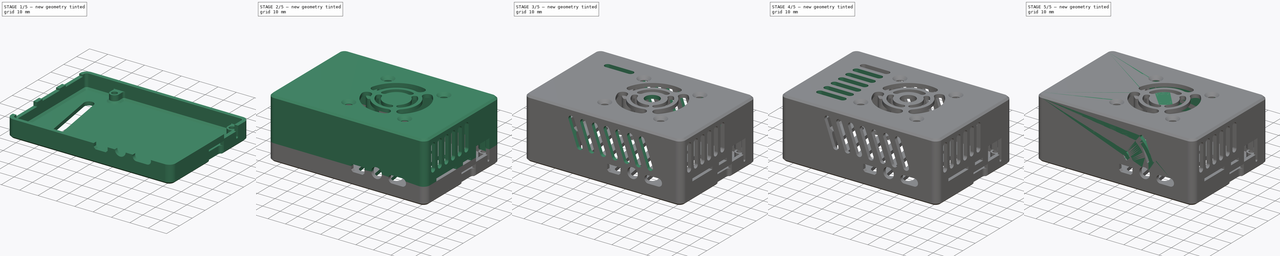
[diagram: build sequence overview — one tinted view per stage of 5, left to right]
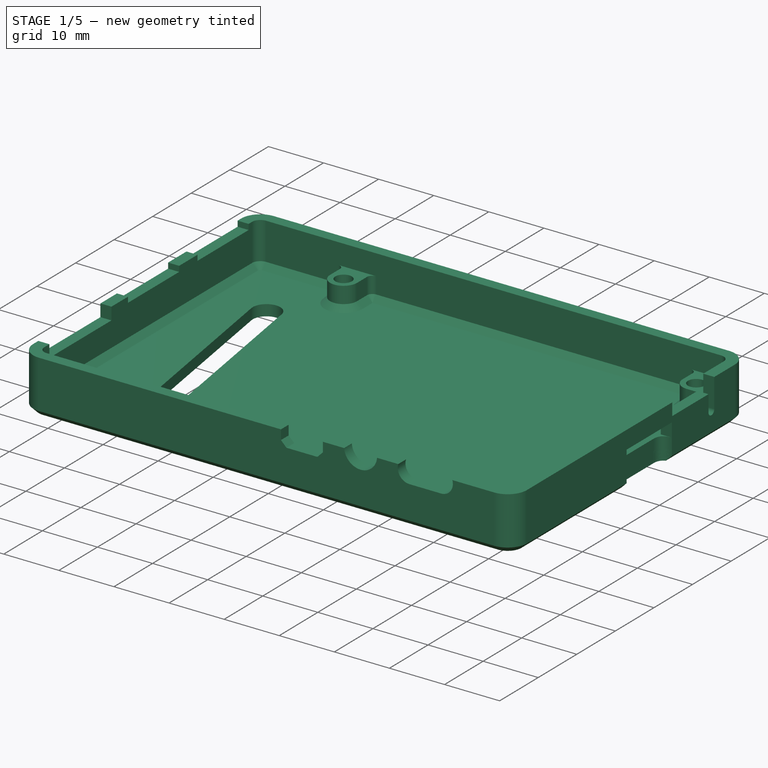
[diagram: stage 1 of 5 — iso view after this stage's code; geometry added in this stage tinted green]
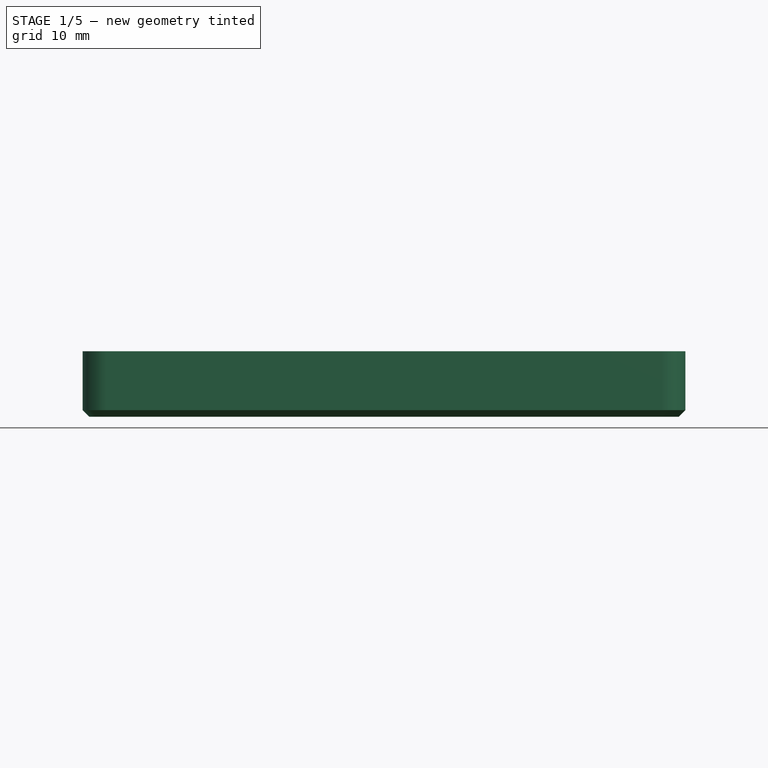
[diagram: stage 1 of 5 — front view after this stage's code; geometry added in this stage tinted green]
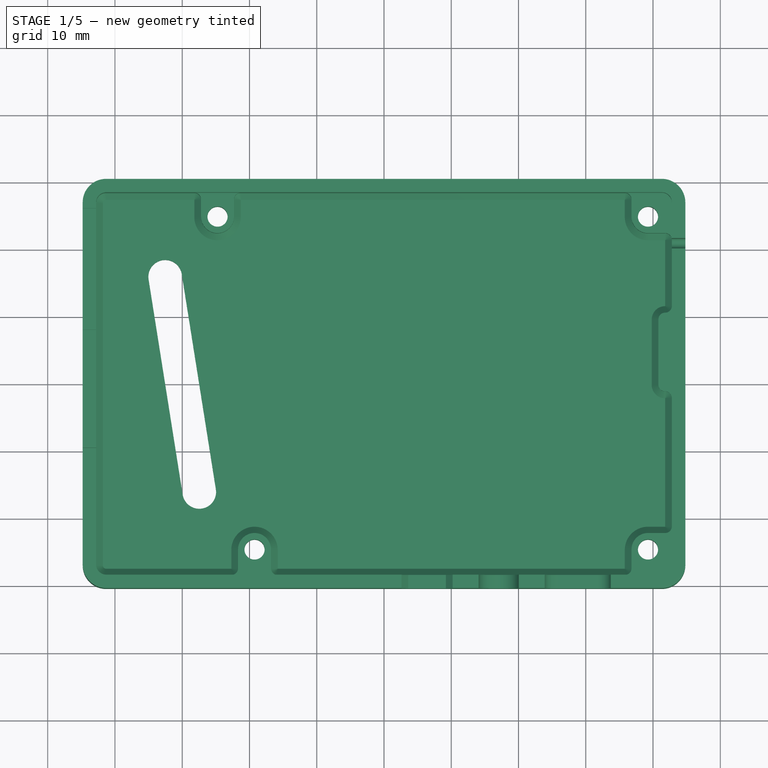
[diagram: stage 1 of 5 — top view after this stage's code; geometry added in this stage tinted green]
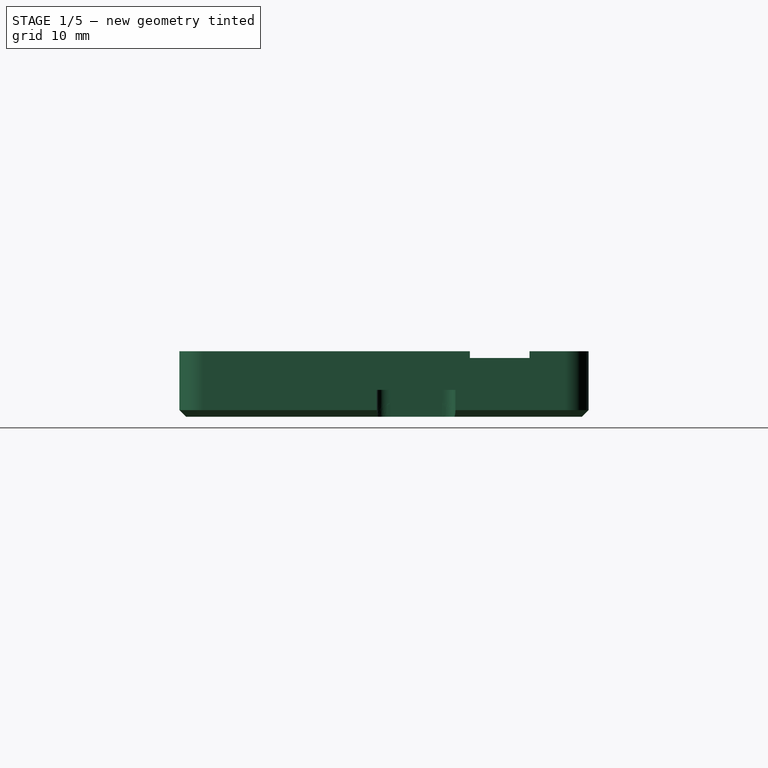
[diagram: stage 1 of 5 — right view after this stage's code; geometry added in this stage tinted green]
FCSTD DOCUMENT  (FreeCAD 0.21R33771 (Git))
Label: BTT_pi_1.2_Case
License: All rights reserved
LicenseURL: https://en.wikipedia.org/wiki/All_rights_reserved
objects: Sketcher::SketchObject×9, PartDesign::Pocket×7, PartDesign::LinearPattern×4, Part::Feature×3, PartDesign::FeatureBase×3, PartDesign::Body×3, PartDesign::Pad×2
note: 40 computed .brp shape members not serialized (recipe doc carries the construction recipe); baked Part::Feature solids carry a one-line shape summary decoded from their .brp

FEATURE [PartDesign::Body] Body001  label="Top_vented"
  BaseFeature = -> Defeatured
  Group = -> [BaseFeature001,Sketch001,Pocket001,LinearPattern001,Sketch002,Pocket002,Sketch003,Pocket003,LinearPattern002,Sketch004,Sketch005,Pad,Pad001]
  Origin = -> Origin001
  Tip = -> Pad001
FEATURE [Part::Feature] Part__Feature001  label="BTT-PI Case v024"
  shape: bbox 89.61 x 60.86 x 9.757 mm, 135 faces (baked)
FEATURE [PartDesign::FeatureBase] BaseFeature002
  BaseFeature = -> Part__Feature001
FEATURE [Sketcher::SketchObject] Sketch006
  ExternalGeometry = -> [BaseFeature002]
  FullyConstrained = true
  MapMode = 5
  Placement = pos=(44.8,0,0) rot=(0.57735,0.57735,0.57735;2.0944rad)
  Support = -> [BaseFeature002]
  sketch-geometry (4):
    g0: ArcOfCircle CenterX=20.875 CenterY=-9.5 CenterZ=0 NormalX=0 NormalY=0 NormalZ=1 AngleXU=0 Radius=0.75 StartAngle=7.017e-13 EndAngle=3.14159
    g1: ArcOfCircle CenterX=20.875 CenterY=-12.5 CenterZ=0 NormalX=0 NormalY=0 NormalZ=1 AngleXU=0 Radius=0.75 StartAngle=3.14159 EndAngle=6.28319
    g2: LineSegment StartX=20.125 StartY=-9.5 StartZ=0 EndX=20.125 EndY=-12.5 EndZ=0
    g3: LineSegment StartX=21.625 StartY=-12.5 StartZ=0 EndX=21.625 EndY=-9.5 EndZ=0
  constraints (10):
    c: Tangent(g0,g2) = -1.5708
    c: Tangent(g2,g1) = -1.5708
    c: Tangent(g1,g3) = -1.5708
    c: Tangent(g3,g0) = -1.5708
    c: Equal(g0,g1)
    c: Vertical(g2)
    c: Diameter(g0) = 1.5
    c: Vertical(g0,g-3)
    c: PointOnObject(g0,g-3)
    c: DistanceY(g3,g3) = 3
FEATURE [PartDesign::Pocket] Pocket004
  BaseFeature = -> BaseFeature002
  Direction = (-1,0,0)
  Length = 5
  Length2 = 5
  Profile = -> Sketch006
  ReferenceAxis = -> Sketch006 [N_Axis]
  Type = 0
FEATURE [Sketcher::SketchObject] Sketch007
  FullyConstrained = true
  MapMode = 5
  Placement = pos=(0,0,-17) rot=(1,0,0;3.14159rad)
  Support = -> [Pocket004]
  sketch-geometry (5):
    g0: ArcOfCircle CenterX=-27.4658 CenterY=16 CenterZ=0 NormalX=0 NormalY=0 NormalZ=1 AngleXU=0 Radius=2.5 StartAngle=6.12611 EndAngle=9.2677
    g1: ArcOfCircle CenterX=-32.5342 CenterY=-16 CenterZ=0 NormalX=0 NormalY=0 NormalZ=1 AngleXU=0 Radius=2.5 StartAngle=2.98451 EndAngle=6.12611
    g2: LineSegment StartX=-29.9351 StartY=16.3911 StartZ=0 EndX=-35.0034 EndY=-15.6089 EndZ=0
    g3: LineSegment StartX=-30.0649 StartY=-16.3911 StartZ=0 EndX=-24.9966 EndY=15.6089 EndZ=0
    g4: GeomPoint X=-30 Y=0 Z=0
  constraints (11):
    c: Tangent(g0,g2) = -1.5708
    c: Tangent(g2,g1) = -1.5708
    c: Tangent(g1,g3) = -1.5708
    c: Tangent(g3,g0) = -1.5708
    c: Equal(g0,g1)
    c: PointOnObject(g4,g-1)
    c: Symmetric(g0,g1,g4)
    c: DistanceY(g3,g3) = 32
    c: Diameter(g0) = 5
    c: Angle(g3,g-2) = 0.15708
    c: DistanceX(g4,g-1) = 30
FEATURE [PartDesign::Pocket] Pocket005
  BaseFeature = -> Pocket004
  Direction = (0,0,1)
  Length = 5
  Length2 = 5
  Profile = -> Sketch007
  ReferenceAxis = -> Sketch007 [N_Axis]
  Type = 0
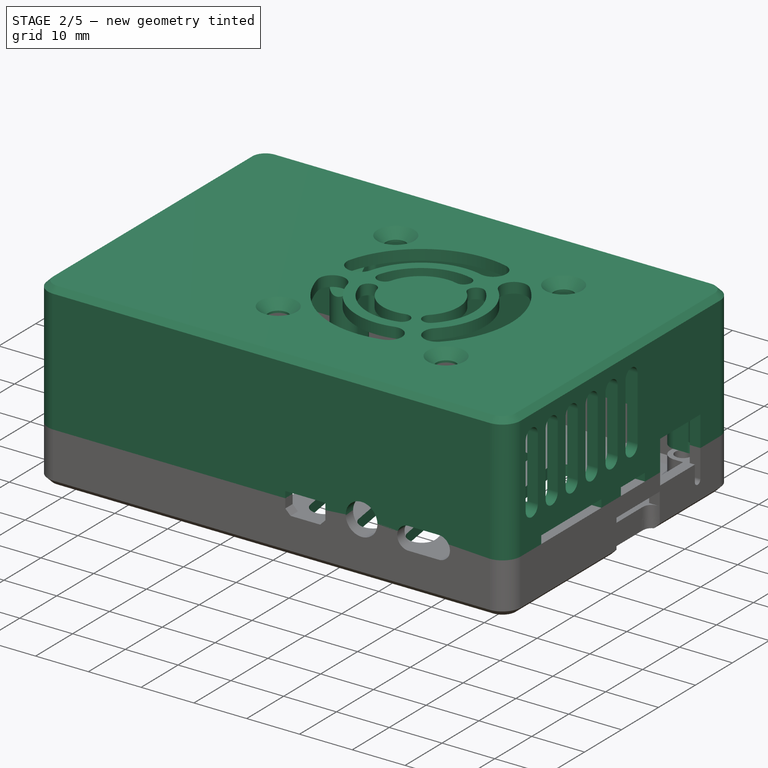
[diagram: stage 2 of 5 — iso view after this stage's code; geometry added in this stage tinted green]
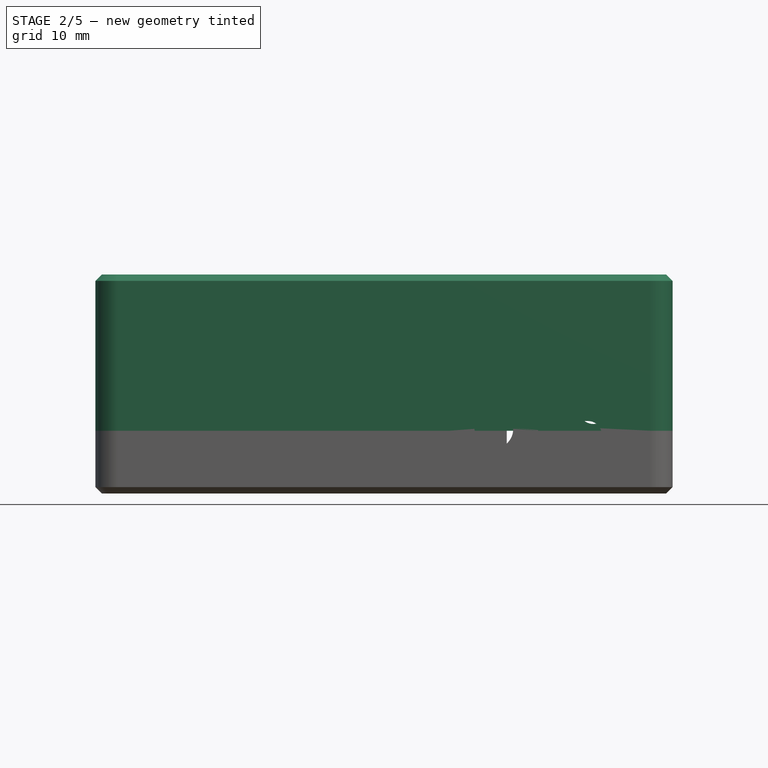
[diagram: stage 2 of 5 — front view after this stage's code; geometry added in this stage tinted green]
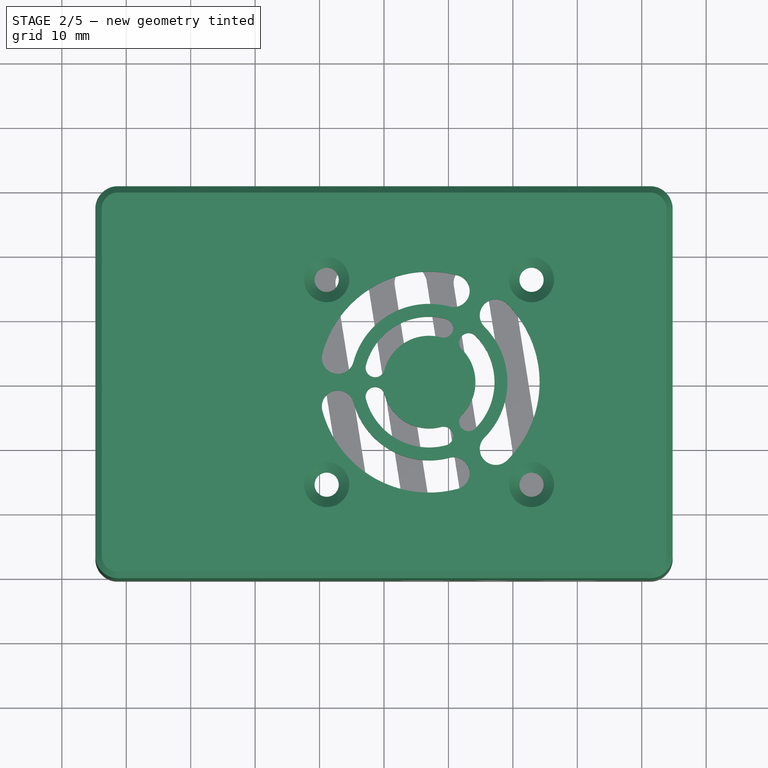
[diagram: stage 2 of 5 — top view after this stage's code; geometry added in this stage tinted green]
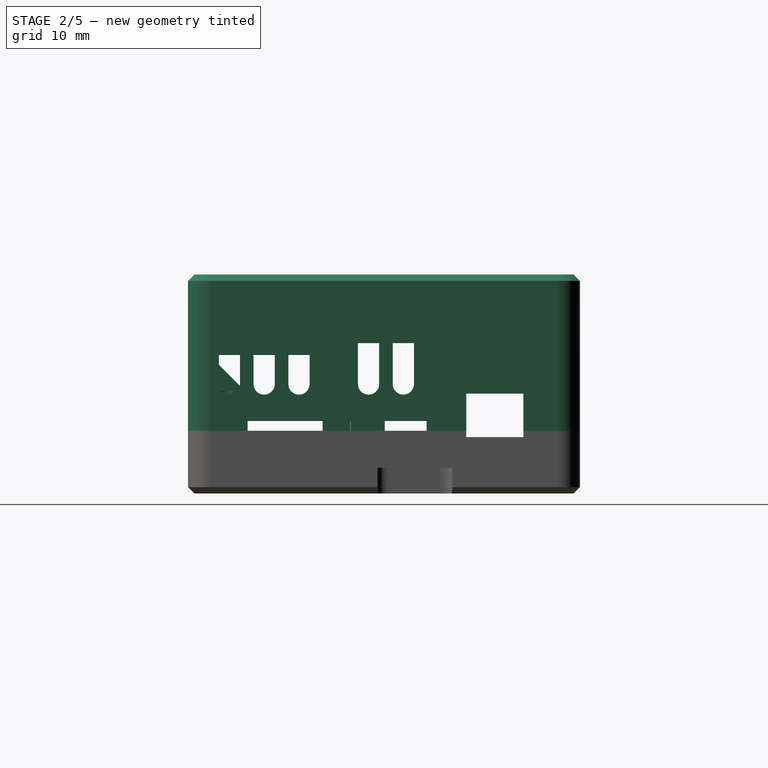
[diagram: stage 2 of 5 — right view after this stage's code; geometry added in this stage tinted green]
FEATURE [PartDesign::Body] Body
  BaseFeature = -> Part__Feature
  Group = -> [BaseFeature,Sketch,Pocket,LinearPattern]
  Origin = -> Origin
  Tip = -> LinearPattern
FEATURE [Part::Feature] Defeatured
  shape: bbox 89.6 x 60.85 x 26.2 mm, 179 faces (baked)
FEATURE [PartDesign::FeatureBase] BaseFeature001
  BaseFeature = -> Defeatured
FEATURE [PartDesign::LinearPattern] LinearPattern003
  BaseFeature = -> Pocket005
  Direction = -> X_Axis002
  Length = 55
  Occurrences = 7
  Originals = -> [Pocket005]
FEATURE [Sketcher::SketchObject] Sketch008
  ExternalGeometry = -> [LinearPattern003]
  FullyConstrained = true
  MapMode = 5
  Placement = pos=(0,30.425,0) rot=(0,0.707107,0.707107;3.14159rad)
  Support = -> [LinearPattern003]
  sketch-geometry (4):
    g0: ArcOfCircle CenterX=-19.8 CenterY=-7.25 CenterZ=0 NormalX=0 NormalY=0 NormalZ=1 AngleXU=0 Radius=0.75 StartAngle=8.1383e-12 EndAngle=3.14159
    g1: ArcOfCircle CenterX=-19.8 CenterY=-12.5 CenterZ=0 NormalX=0 NormalY=0 NormalZ=1 AngleXU=0 Radius=0.75 StartAngle=3.14159 EndAngle=6.28319
    g2: LineSegment StartX=-20.55 StartY=-7.25 StartZ=0 EndX=-20.55 EndY=-12.5 EndZ=0
    g3: LineSegment StartX=-19.05 StartY=-12.5 StartZ=0 EndX=-19.05 EndY=-7.25 EndZ=0
  constraints (10):
    c: Tangent(g0,g2) = -1.5708
    c: Tangent(g2,g1) = -1.5708
    c: Tangent(g1,g3) = -1.5708
    c: Tangent(g3,g0) = -1.5708
    c: Equal(g0,g1)
    c: Vertical(g2)
    c: Diameter(g0) = 1.5
    c: Horizontal(g0,g-3)
    c: DistanceX(g-3,g0) = 23
    c: Horizontal(g1,g-4)
FEATURE [PartDesign::Pocket] Pocket006
  BaseFeature = -> LinearPattern003
  Direction = (0,-1,2e-16)
  Length = 5
  Length2 = 5
  Profile = -> Sketch008
  ReferenceAxis = -> Sketch008 [N_Axis]
  Type = 0
FEATURE [PartDesign::Body] Body002  label="Btm_vented"
  BaseFeature = -> Part__Feature001
  Group = -> [BaseFeature002,Sketch006,Pocket004,Sketch007,Pocket005,LinearPattern003,Sketch008,Pocket006]
  Origin = -> Origin002
  Tip = -> Pocket006
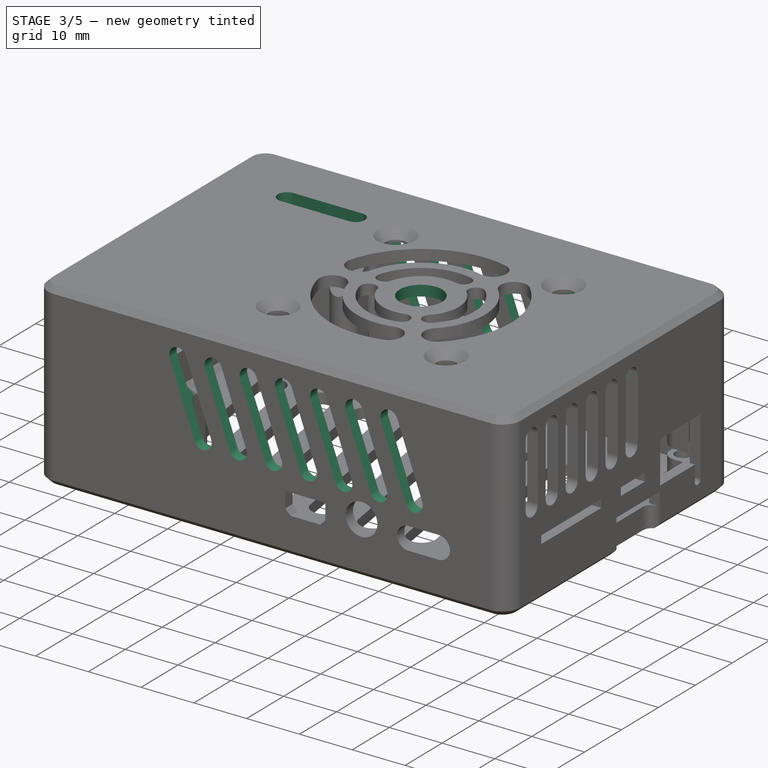
[diagram: stage 3 of 5 — iso view after this stage's code; geometry added in this stage tinted green]
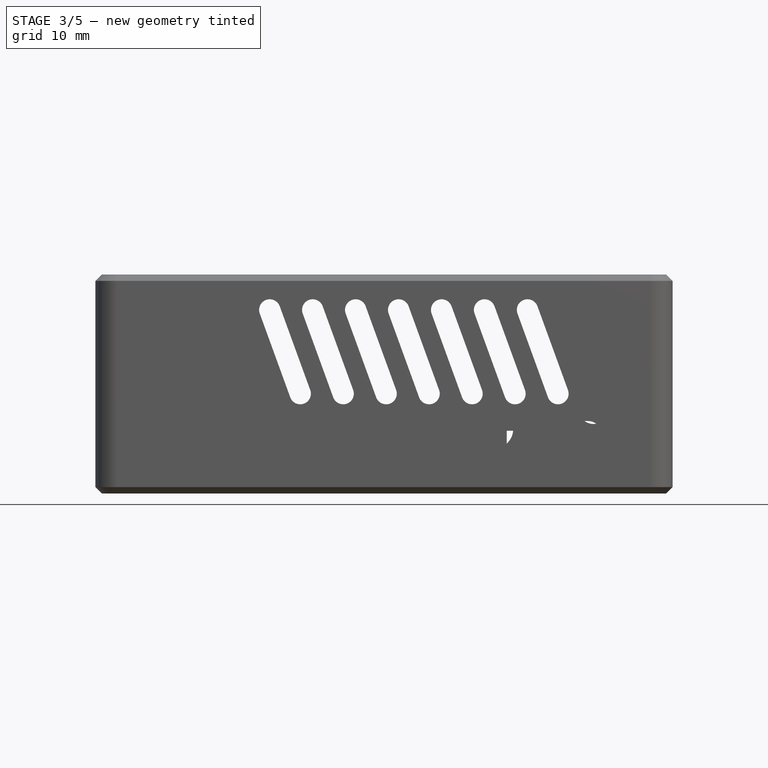
[diagram: stage 3 of 5 — front view after this stage's code; geometry added in this stage tinted green]
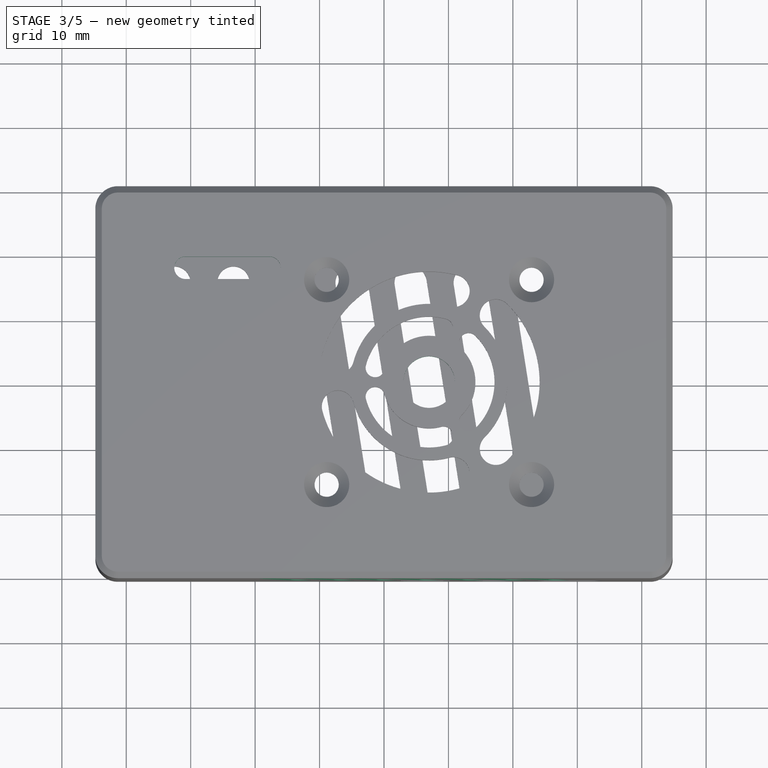
[diagram: stage 3 of 5 — top view after this stage's code; geometry added in this stage tinted green]
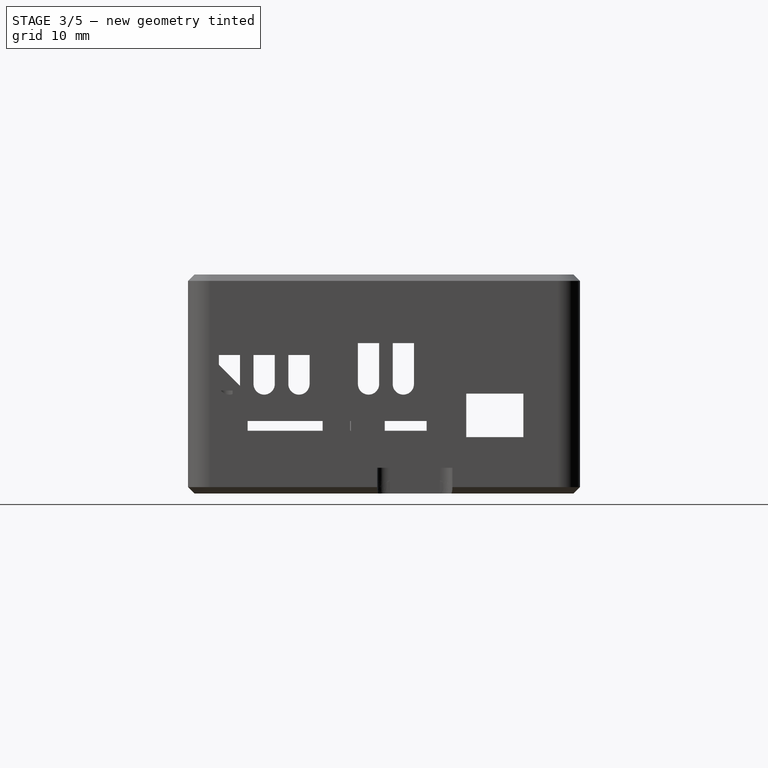
[diagram: stage 3 of 5 — right view after this stage's code; geometry added in this stage tinted green]
FEATURE [Sketcher::SketchObject] Sketch001
  FullyConstrained = true
  MapMode = 5
  Placement = pos=(0,30.425,0) rot=(0,0.707107,0.707107;3.14159rad)
  Support = -> [BaseFeature001]
  sketch-geometry (4):
    g0: ArcOfCircle CenterX=-27 CenterY=-1.5 CenterZ=0 NormalX=0 NormalY=0 NormalZ=1 AngleXU=0 Radius=1.65 StartAngle=2.79253 EndAngle=5.93412
    g1: ArcOfCircle CenterX=-22.2684 CenterY=11.5 CenterZ=0 NormalX=0 NormalY=0 NormalZ=1 AngleXU=0 Radius=1.65 StartAngle=5.93412 EndAngle=9.07571
    g2: LineSegment StartX=-25.4495 StartY=-2.06433 StartZ=0 EndX=-20.7179 EndY=10.9357 EndZ=0
    g3: LineSegment StartX=-23.8189 StartY=12.0643 StartZ=0 EndX=-28.5505 EndY=-0.935667 EndZ=0
  constraints (10):
    c: Tangent(g0,g2) = -1.5708
    c: Tangent(g2,g1) = -1.5708
    c: Tangent(g1,g3) = -1.5708
    c: Tangent(g3,g0) = -1.5708
    c: Equal(g0,g1)
    c: Diameter(g1) = 3.3
    c: Angle(g2,g-2) = 0.349066
    c: DistanceX(g0,g-1) = 27
    c: DistanceY(g0,g1) = 13
    c: DistanceY(g0,g-1) = 1.5
FEATURE [PartDesign::Pocket] Pocket001
  BaseFeature = -> BaseFeature001
  Direction = (0,-1,2e-16)
  Length = 5
  Length2 = 5
  Profile = -> Sketch001
  ReferenceAxis = -> Sketch001 [N_Axis]
  Type = 1
FEATURE [PartDesign::LinearPattern] LinearPattern001
  BaseFeature = -> Pocket001
  Direction = -> X_Axis001
  Length = 40
  Occurrences = 7
  Originals = -> [Pocket001]
  Reversed = true
FEATURE [Sketcher::SketchObject] Sketch002
  ExternalGeometry = -> [LinearPattern001]
  FullyConstrained = true
  MapMode = 5
  Placement = pos=(0,0,17) rot=(0,0,1;0rad)
  Support = -> [LinearPattern001]
  sketch-geometry (1):
    g0: Circle CenterX=7 CenterY=0 CenterZ=0 NormalX=0 NormalY=0 NormalZ=1 AngleXU=0 Radius=4
  constraints (2):
    c: Coincident(g0,g-4)
    c: Diameter(g0) = 8
FEATURE [PartDesign::Pocket] Pocket002
  BaseFeature = -> LinearPattern001
  Direction = (0,0,-1)
  Length = 5
  Length2 = 5
  Profile = -> Sketch002
  ReferenceAxis = -> Sketch002 [N_Axis]
  Type = 0
FEATURE [Sketcher::SketchObject] Sketch003
  ExternalGeometry = -> [Pocket002]
  FullyConstrained = true
  MapMode = 5
  Placement = pos=(0,0,17) rot=(0,0,1;0rad)
  Support = -> [Pocket002]
  expr: Constraints[9] = (39 - 3.5) / 2
  sketch-geometry (4):
    g0: ArcOfCircle CenterX=-30.8 CenterY=17.75 CenterZ=0 NormalX=0 NormalY=0 NormalZ=1 AngleXU=0 Radius=1.75 StartAngle=1.5708 EndAngle=4.71239
    g1: ArcOfCircle CenterX=-17.8 CenterY=17.75 CenterZ=0 NormalX=0 NormalY=0 NormalZ=1 AngleXU=0 Radius=1.75 StartAngle=4.71239 EndAngle=7.85398
    g2: LineSegment StartX=-30.8 StartY=16 StartZ=0 EndX=-17.8 EndY=16 EndZ=0
    g3: LineSegment StartX=-17.8 StartY=19.5 StartZ=0 EndX=-30.8 EndY=19.5 EndZ=0
  constraints (10):
    c: Tangent(g0,g2) = -1.5708
    c: Tangent(g2,g1) = -1.5708
    c: Tangent(g1,g3) = -1.5708
    c: Tangent(g3,g0) = -1.5708
    c: Equal(g0,g1)
    c: Horizontal(g2)
    c: DistanceX(g-3,g0) = 13
    c: Diameter(g0) = 3.5
    c: DistanceX(g3,g3) = 13
    c: DistanceY(g-1,g1) = 17.75
FEATURE [PartDesign::Pocket] Pocket003
  BaseFeature = -> Pocket002
  Direction = (0,0,-1)
  Length = 5
  Length2 = 5
  Profile = -> Sketch003
  ReferenceAxis = -> Sketch003 [N_Axis]
  Type = 0
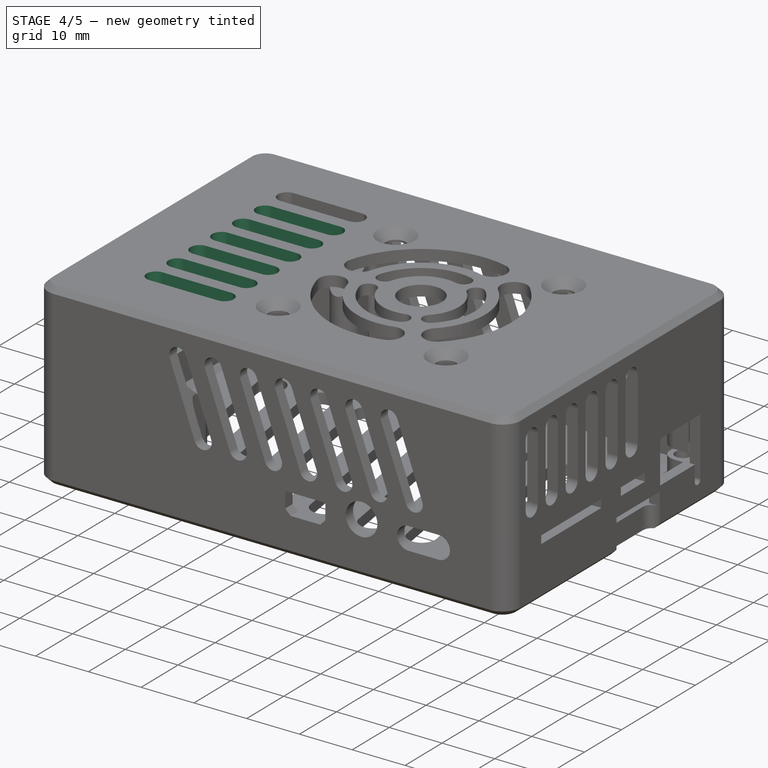
[diagram: stage 4 of 5 — iso view after this stage's code; geometry added in this stage tinted green]
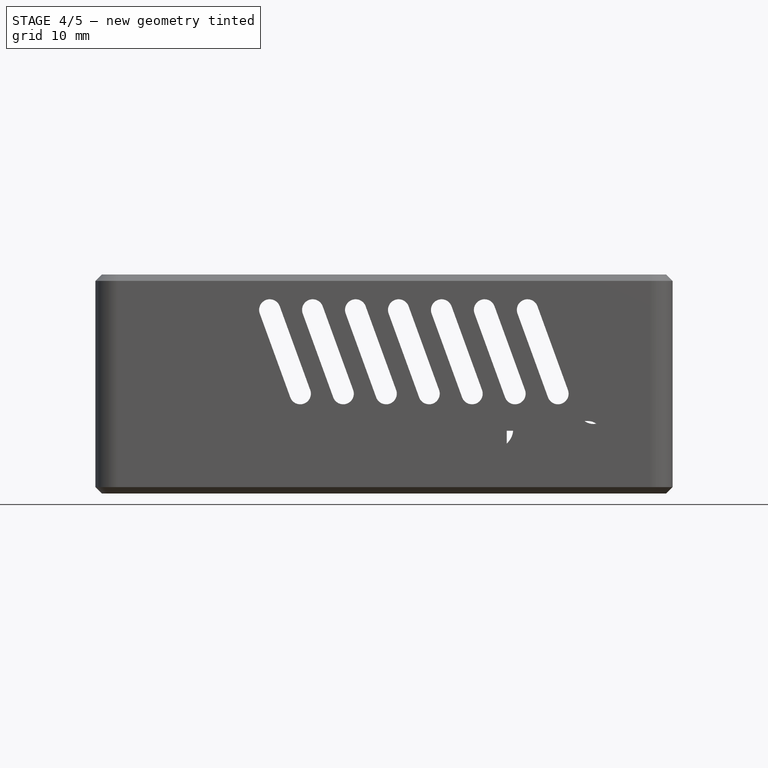
[diagram: stage 4 of 5 — front view after this stage's code; geometry added in this stage tinted green]
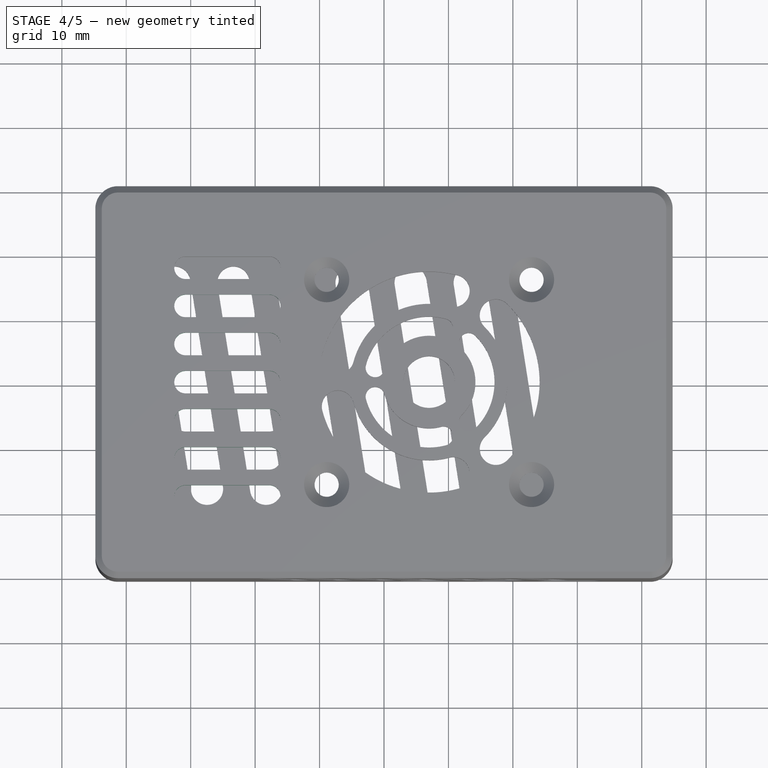
[diagram: stage 4 of 5 — top view after this stage's code; geometry added in this stage tinted green]
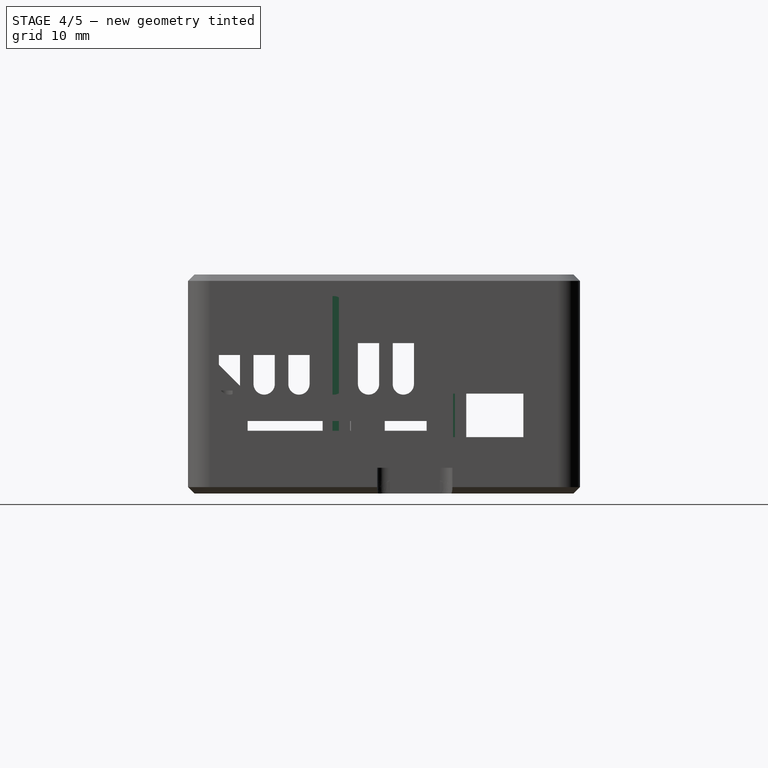
[diagram: stage 4 of 5 — right view after this stage's code; geometry added in this stage tinted green]
FEATURE [PartDesign::LinearPattern] LinearPattern002
  BaseFeature = -> Pocket003
  Direction = -> Y_Axis001
  Length = 35.5
  Occurrences = 7
  Originals = -> [Pocket003]
  Reversed = true
FEATURE [Sketcher::SketchObject] Sketch004
  AttachmentOffset = pos=(0,0,7.5) rot=(0,0,1;0rad)
  ExternalGeometry = -> [LinearPattern002]
  FullyConstrained = true
  MapMode = 5
  Placement = pos=(0,-7.5,1.7e-15) rot=(1,0,0;1.5708rad)
  Support = -> [XZ_Plane001]
  sketch-geometry (6):
    g0: LineSegment StartX=-42.8 StartY=-7.25 StartZ=0 EndX=-42.8 EndY=15 EndZ=0
    g1: LineSegment StartX=-42.8 StartY=15 StartZ=0 EndX=-33.3 EndY=15 EndZ=0
    g2: LineSegment StartX=-42.8 StartY=-7.25 StartZ=0 EndX=-36.8 EndY=-7.25 EndZ=0
    g3: LineSegment StartX=-36.8 StartY=-7.25 StartZ=0 EndX=-36.8 EndY=-8.25 EndZ=0
    g4: LineSegment StartX=-36.8 StartY=-8.25 StartZ=0 EndX=-34.8 EndY=-8.25 EndZ=0
    g5: LineSegment StartX=-33.3 StartY=15 StartZ=0 EndX=-34.8 EndY=-8.25 EndZ=0
  constraints (17):
    c: Coincident(g0,g-3)
    c: Vertical(g0)
    c: Coincident(g0,g1)
    c: PointOnObject(g1,g-4)
    c: Horizontal(g1)
    c: DistanceX(g1,g1) = 9.5
    c: Coincident(g0,g2)
    c: Coincident(g2,g3)
    c: Vertical(g3)
    c: Coincident(g3,g4)
    c: Horizontal(g4)
    c: DistanceY(g3,g3) = 1
    c: Horizontal(g2)
    c: DistanceX(g2,g2) = 6
    c: DistanceX(g4,g4) = 2
    c: Coincident(g5,g1)
    c: Coincident(g5,g4)
FEATURE [Sketcher::SketchObject] Sketch005
  AttachmentOffset = pos=(0,0,-10.5) rot=(0,0,1;0rad)
  ExternalGeometry = -> [LinearPattern002]
  FullyConstrained = true
  MapMode = 5
  Placement = pos=(0,10.5,-2.3e-15) rot=(1,0,0;1.5708rad)
  Support = -> [XZ_Plane001]
  sketch-geometry (6):
    g0: LineSegment StartX=-42.8 StartY=-7.25 StartZ=0 EndX=-42.8 EndY=15 EndZ=0
    g1: LineSegment StartX=-42.8 StartY=15 StartZ=0 EndX=-33.3 EndY=15 EndZ=0
    g2: LineSegment StartX=-42.8 StartY=-7.25 StartZ=0 EndX=-42.5 EndY=-7.25 EndZ=0
    g3: LineSegment StartX=-42.5 StartY=-7.25 StartZ=0 EndX=-42.5 EndY=-8.25 EndZ=0
    g4: LineSegment StartX=-42.5 StartY=-8.25 StartZ=0 EndX=-35.5 EndY=-8.25 EndZ=0
    g5: LineSegment StartX=-33.3 StartY=15 StartZ=0 EndX=-35.5 EndY=-8.25 EndZ=0
  constraints (17):
    c: Coincident(g0,g-3)
    c: Vertical(g0)
    c: Coincident(g0,g1)
    c: PointOnObject(g1,g-4)
    c: Horizontal(g1)
    c: DistanceX(g1,g1) = 9.5
    c: Coincident(g0,g2)
    c: Coincident(g2,g3)
    c: Vertical(g3)
    c: Coincident(g3,g4)
    c: Horizontal(g4)
    c: DistanceY(g3,g3) = 1
    c: Horizontal(g2)
    c: DistanceX(g2,g2) = 0.3
    c: DistanceX(g4,g4) = 7
    c: Coincident(g5,g1)
    c: Coincident(g5,g4)
FEATURE [PartDesign::Pad] Pad
  BaseFeature = -> LinearPattern002
  Direction = (0,-1,2e-16)
  Length = 1
  Length2 = 10
  Midplane = true
  Profile = -> Sketch005
  ReferenceAxis = -> Sketch005 [N_Axis]
  Type = 0
FEATURE [PartDesign::Pad] Pad001
  BaseFeature = -> Pad
  Direction = (0,-1,2e-16)
  Length = 1
  Length2 = 10
  Midplane = true
  Profile = -> Sketch004
  ReferenceAxis = -> Sketch004 [N_Axis]
  Type = 0
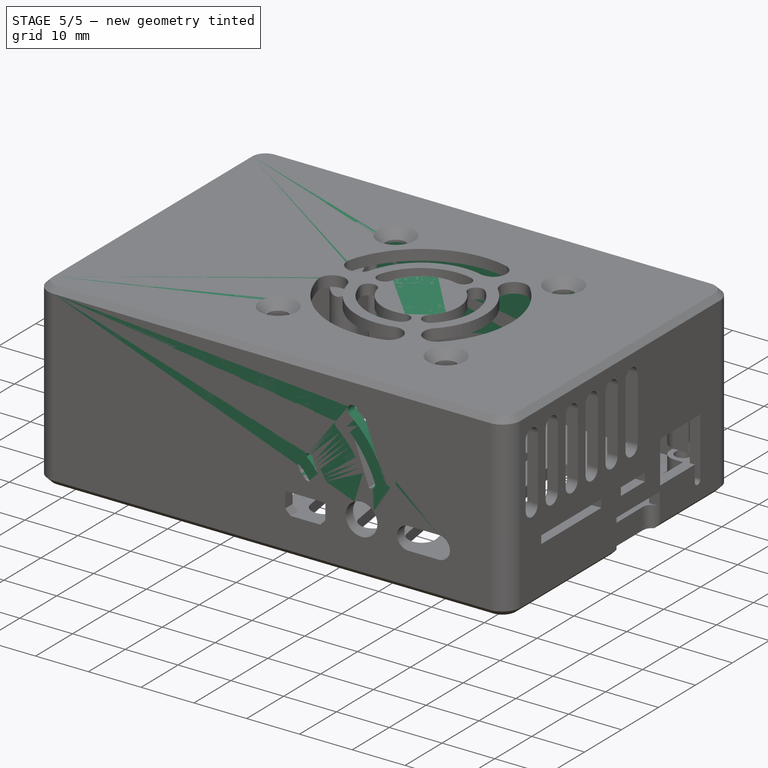
[diagram: stage 5 of 5 — iso view after this stage's code; geometry added in this stage tinted green]
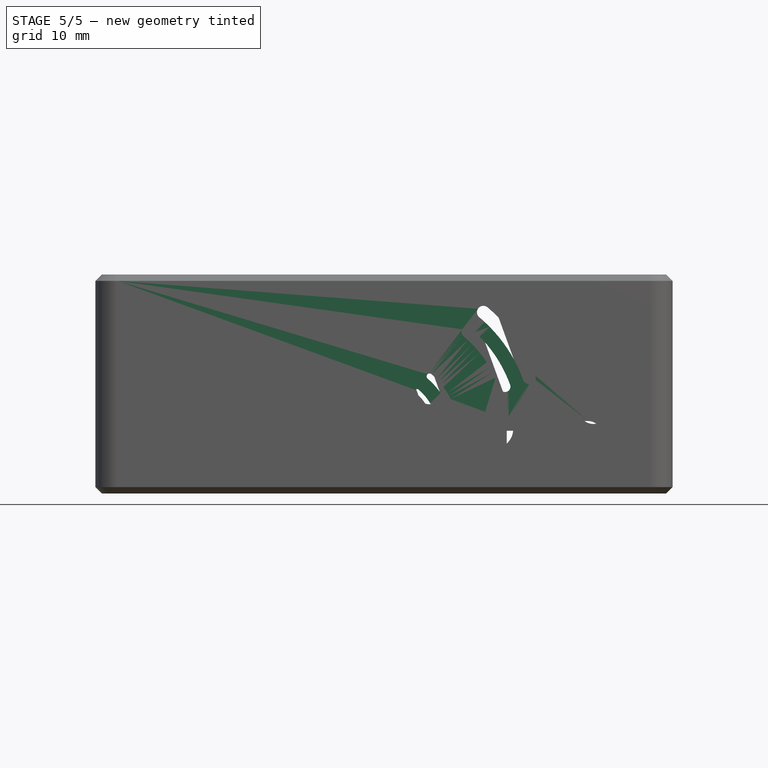
[diagram: stage 5 of 5 — front view after this stage's code; geometry added in this stage tinted green]
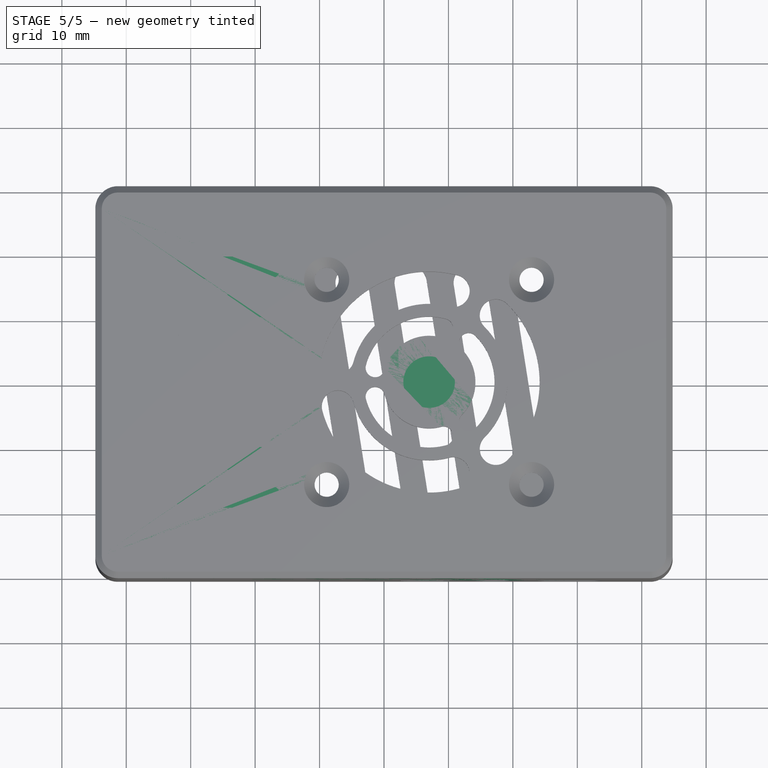
[diagram: stage 5 of 5 — top view after this stage's code; geometry added in this stage tinted green]
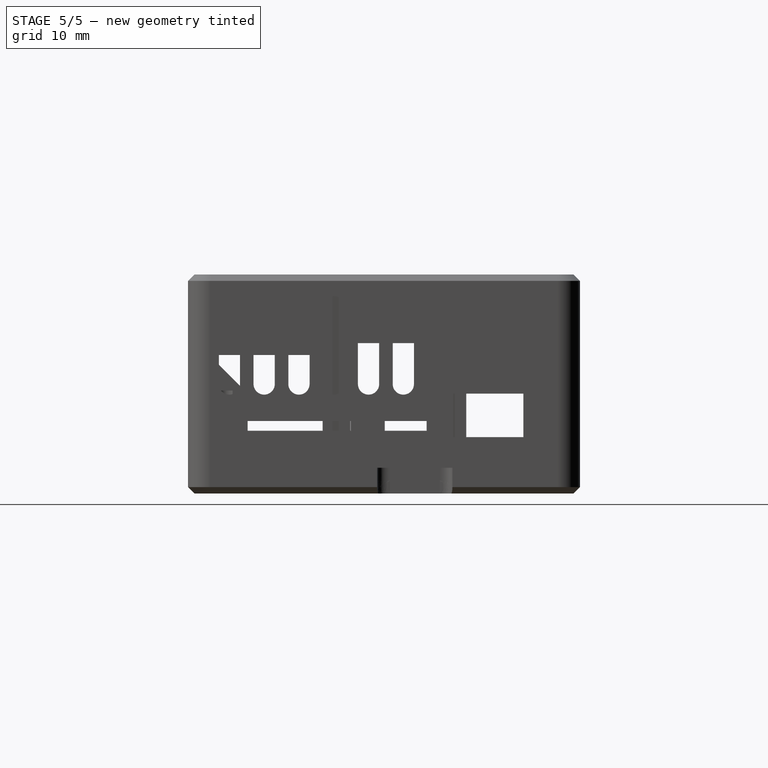
[diagram: stage 5 of 5 — right view after this stage's code; geometry added in this stage tinted green]
FEATURE [Part::Feature] Part__Feature  label="BTT-PI Case v23"
  shape: bbox 89.6 x 60.85 x 26.2 mm, 186 faces (baked)
FEATURE [PartDesign::FeatureBase] BaseFeature
  BaseFeature = -> Part__Feature
FEATURE [Sketcher::SketchObject] Sketch
  FullyConstrained = true
  MapMode = 5
  Placement = pos=(44.8,0,0) rot=(0.57735,0.57735,0.57735;2.0944rad)
  Support = -> [BaseFeature]
  sketch-geometry (4):
    g0: ArcOfCircle CenterX=-24 CenterY=12 CenterZ=0 NormalX=0 NormalY=0 NormalZ=1 AngleXU=0 Radius=1.65 StartAngle=3e-16 EndAngle=3.14159
    g1: ArcOfCircle CenterX=-24 CenterY=0 CenterZ=0 NormalX=0 NormalY=0 NormalZ=1 AngleXU=0 Radius=1.65 StartAngle=3.14159 EndAngle=6.28319
    g2: LineSegment StartX=-25.65 StartY=12 StartZ=0 EndX=-25.65 EndY=0 EndZ=0
    g3: LineSegment StartX=-22.35 StartY=-4e-16 StartZ=0 EndX=-22.35 EndY=12 EndZ=0
  constraints (10):
    c: Tangent(g0,g2) = -1.5708
    c: Tangent(g2,g1) = -1.5708
    c: Tangent(g1,g3) = -1.5708
    c: Tangent(g3,g0) = -1.5708
    c: Equal(g0,g1)
    c: Vertical(g2)
    c: PointOnObject(g1,g-1)
    c: DistanceX(g0,g0) = 3.3
    c: DistanceY(g3,g3) = 12
    c: DistanceX(g1,g-1) = 24
FEATURE [PartDesign::Pocket] Pocket
  BaseFeature = -> BaseFeature
  Direction = (-1,0,0)
  Length = 5
  Length2 = 5
  Profile = -> Sketch
  ReferenceAxis = -> Sketch [N_Axis]
  Type = 0
FEATURE [PartDesign::LinearPattern] LinearPattern
  BaseFeature = -> Pocket
  Direction = -> Y_Axis
  Length = 27
  Occurrences = 6
  Originals = -> [Pocket]
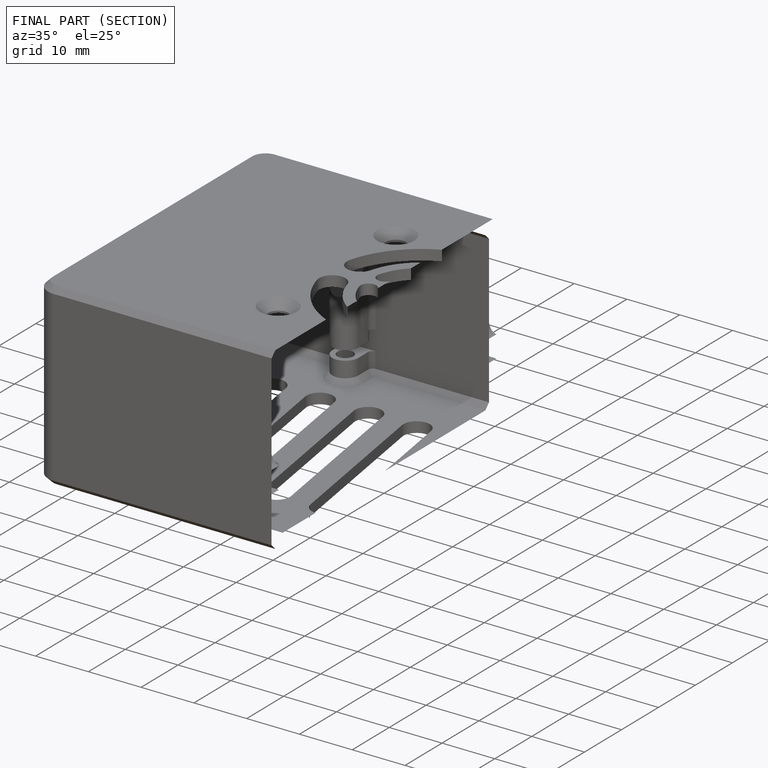
[diagram: finished part — half-section view (interior)]
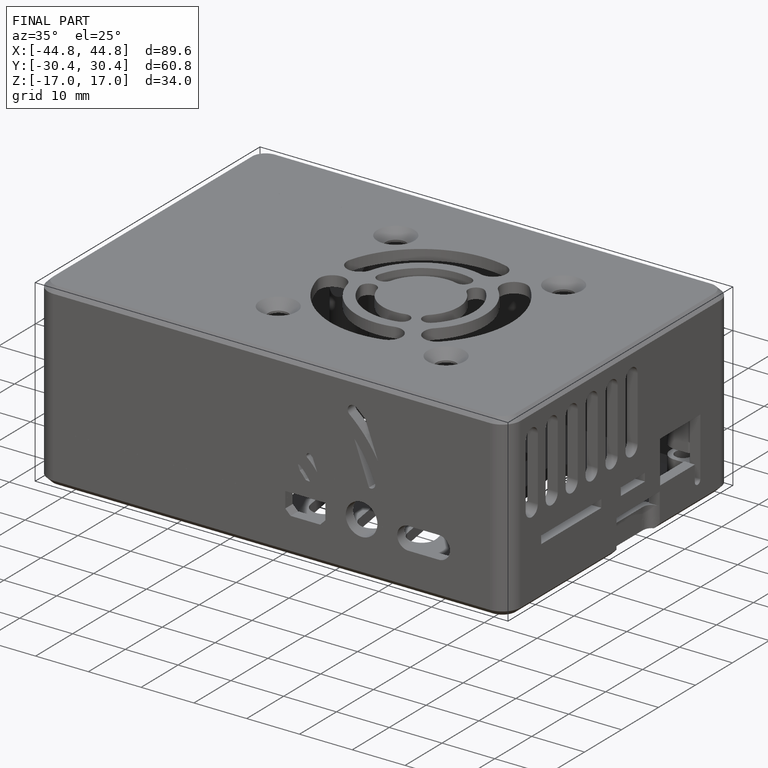
[diagram: finished part — iso view with bounding-box wireframe]
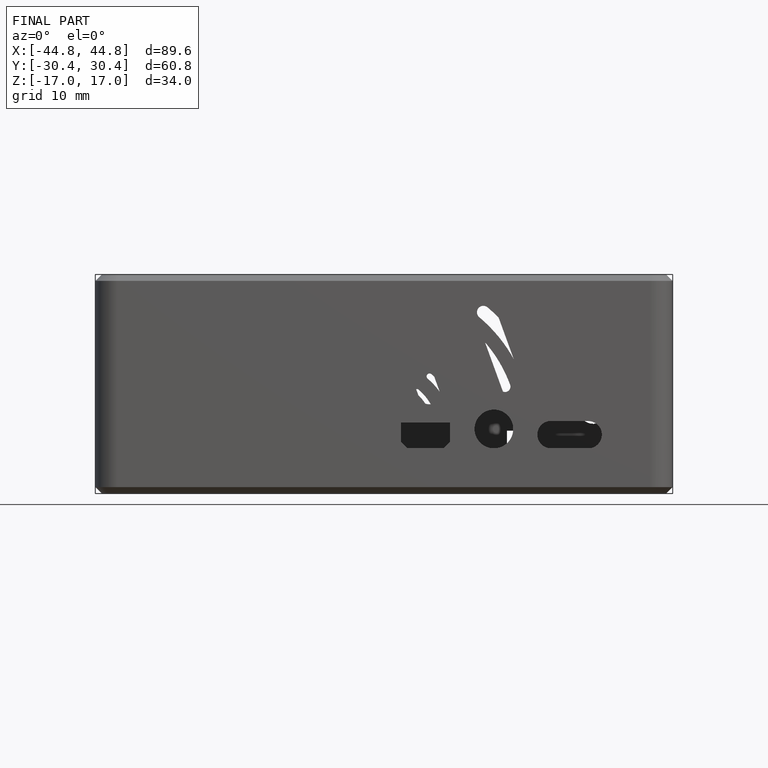
[diagram: finished part — front view with bounding-box wireframe]
